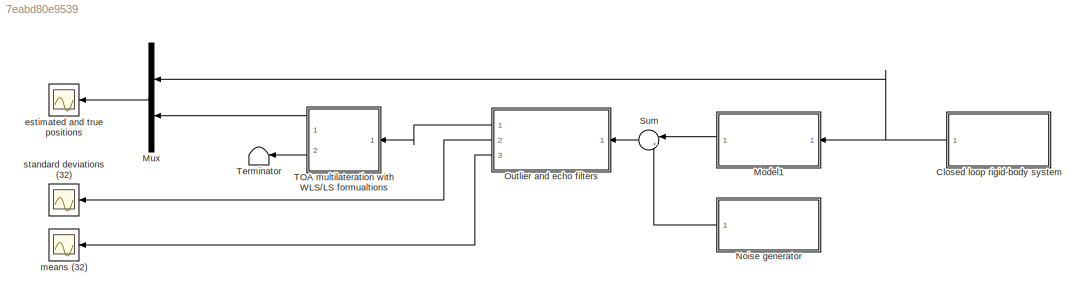
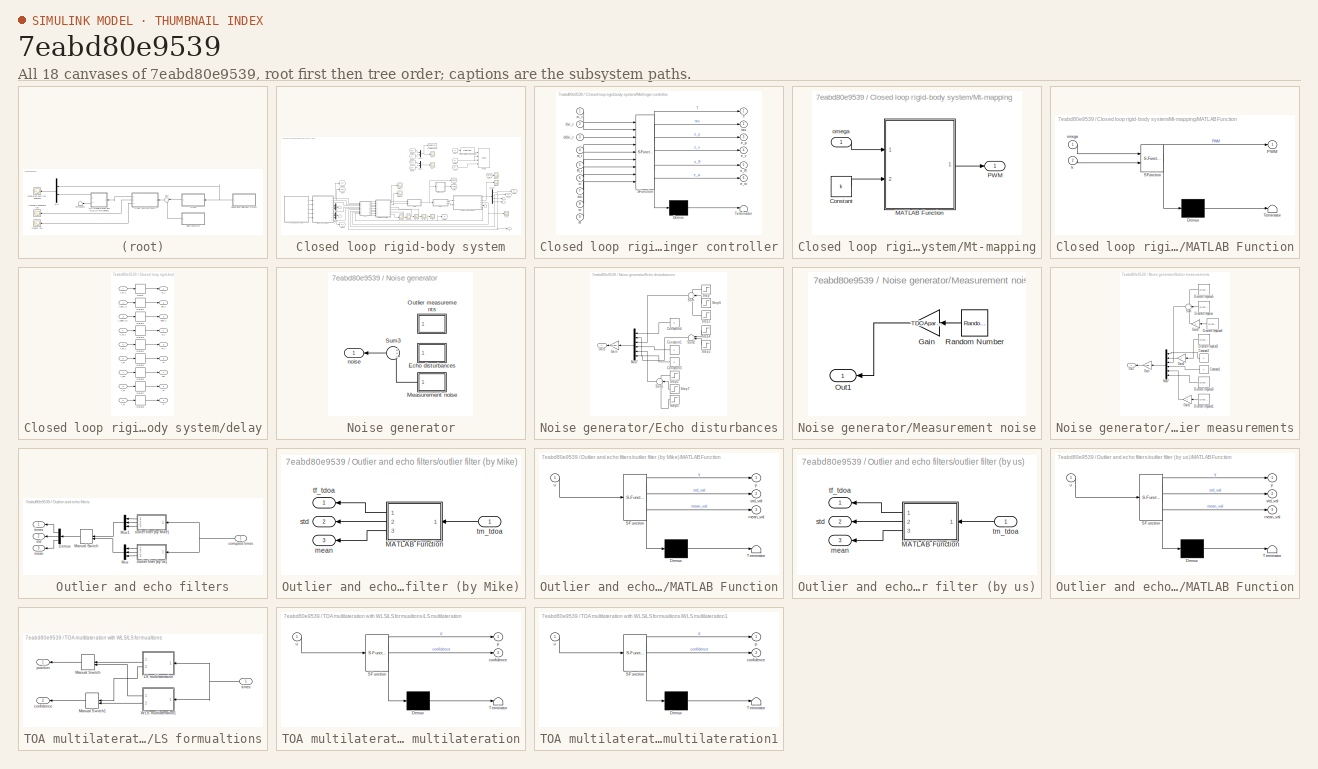
[diagram: thumbnail index - all 18 canvases of the model, root first then tree order]
MODEL slx_7eabd80e9539
KIND model
CONFIG AbsTol = auto
CONFIG FixedStep = auto
CONFIG MaxStep = auto
CONFIG MinStep = auto
CONFIG RelTol = 1e-3
CONFIG SampleTimeConstraint = Unconstrained
CONFIG Solver = VariableStepAuto
CONFIG SolverMode = Auto
CONFIG SolverName = VariableStepAuto
CONFIG StartTime = 0.0
CONFIG StopTime = 25
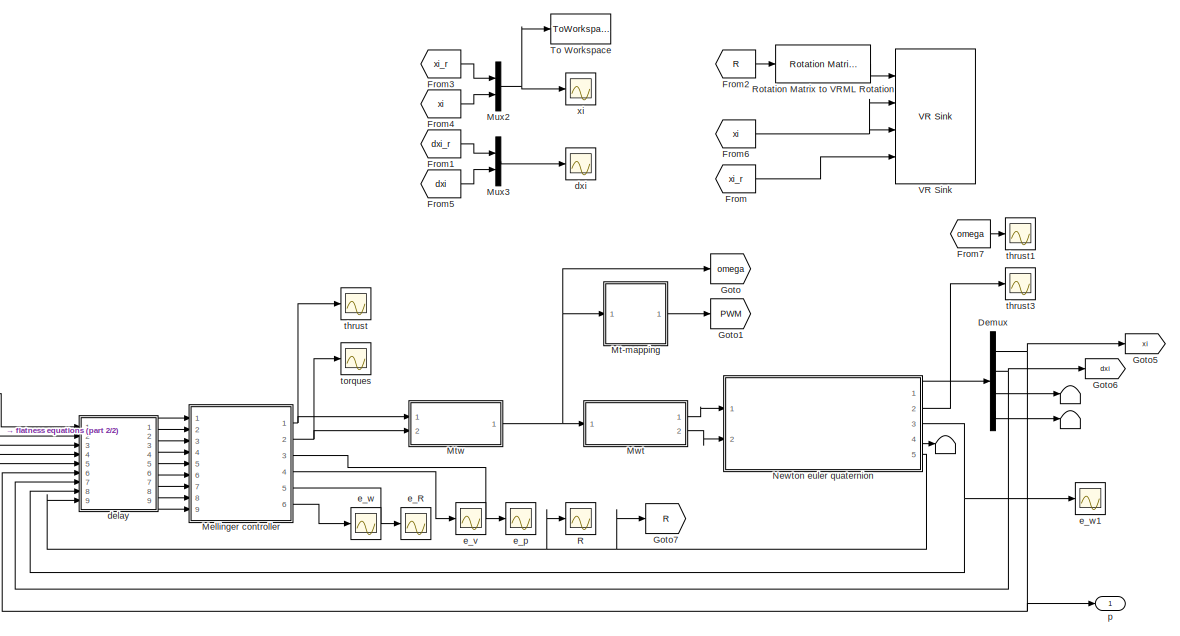
[diagram: Closed loop rigid-body system - part 1/2, center side, full height]
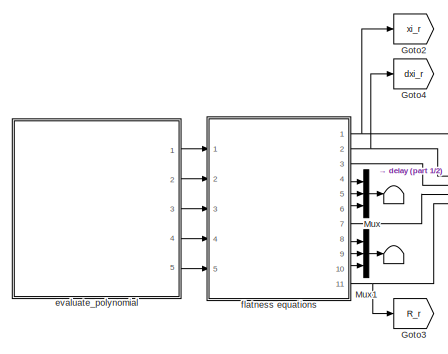
[diagram: Closed loop rigid-body system - part 2/2, bottom left region]
BLOCK [SubSystem] Closed loop rigid-body system
  Ports = [0, 1]
  RequestExecContextInheritance = off
  Variant = off
BLOCK [Terminator] Closed loop rigid-body system/ 
BLOCK [Terminator] Closed loop rigid-body system/  
BLOCK [Terminator] Closed loop rigid-body system/     
BLOCK [Terminator] Closed loop rigid-body system/      
BLOCK [Terminator] Closed loop rigid-body system/       
BLOCK [Demux] Closed loop rigid-body system/Demux
  DisplayOption = bar
  Outputs = [3,3,3,3]
  Ports = [1, 4]
BLOCK [From] Closed loop rigid-body system/From
  GotoTag = xi_r
BLOCK [From] Closed loop rigid-body system/From1
  GotoTag = dxi_r
BLOCK [From] Closed loop rigid-body system/From2
  GotoTag = R
BLOCK [From] Closed loop rigid-body system/From3
  GotoTag = xi_r
BLOCK [From] Closed loop rigid-body system/From4
  GotoTag = xi
BLOCK [From] Closed loop rigid-body system/From5
  GotoTag = dxi
BLOCK [From] Closed loop rigid-body system/From6
  GotoTag = xi
BLOCK [From] Closed loop rigid-body system/From7
  GotoTag = omega
BLOCK [Goto] Closed loop rigid-body system/Goto
  GotoTag = omega
BLOCK [Goto] Closed loop rigid-body system/Goto1
  GotoTag = PWM
BLOCK [Goto] Closed loop rigid-body system/Goto2
  GotoTag = xi_r
BLOCK [Goto] Closed loop rigid-body system/Goto3
  GotoTag = R_r
BLOCK [Goto] Closed loop rigid-body system/Goto4
  GotoTag = dxi_r
BLOCK [Goto] Closed loop rigid-body system/Goto5
  GotoTag = xi
BLOCK [Goto] Closed loop rigid-body system/Goto6
  GotoTag = dxi
BLOCK [Goto] Closed loop rigid-body system/Goto7
  GotoTag = R
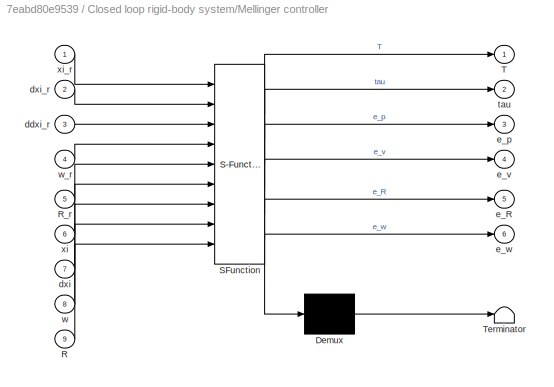
BLOCK [SubSystem] Closed loop rigid-body system/Mellinger controller
  ErrorFcn = Stateflow.Translate.translate
  PermitHierarchicalResolution = ExplicitOnly
  Ports = [9, 6]
  RequestExecContextInheritance = off
  SFBlockType = MATLAB Function
  SystemSampleTime = inner_h
  TreatAsAtomicUnit = on
  Variant = off
BLOCK [Demux] Closed loop rigid-body system/Mellinger controller/ Demux 
  Outputs = 1
  Ports = [1, 1]
BLOCK [S-Function] Closed loop rigid-body system/Mellinger controller/ SFunction 
  EnableBusSupport = on
  FunctionName = sf_sfun
  PortCounts = [9 7]
  Ports = [9, 7]
  SFunctionDeploymentMode = off
  Tag = Stateflow S-Function example_multilateration 2
BLOCK [Terminator] Closed loop rigid-body system/Mellinger controller/ Terminator 
BLOCK [Inport] Closed loop rigid-body system/Mellinger controller/R
  IconDisplay = Port number
  Port = 9
BLOCK [Inport] Closed loop rigid-body system/Mellinger controller/R_r
  IconDisplay = Port number
  Port = 5
BLOCK [Outport] Closed loop rigid-body system/Mellinger controller/T
  IconDisplay = Port number
BLOCK [Inport] Closed loop rigid-body system/Mellinger controller/ddxi_r
  IconDisplay = Port number
  Port = 3
BLOCK [Inport] Closed loop rigid-body system/Mellinger controller/dxi
  IconDisplay = Port number
  Port = 7
BLOCK [Inport] Closed loop rigid-body system/Mellinger controller/dxi_r
  IconDisplay = Port number
  Port = 2
BLOCK [Outport] Closed loop rigid-body system/Mellinger controller/e_R
  IconDisplay = Port number
  Port = 5
BLOCK [Outport] Closed loop rigid-body system/Mellinger controller/e_p
  IconDisplay = Port number
  Port = 3
BLOCK [Outport] Closed loop rigid-body system/Mellinger controller/e_v
  IconDisplay = Port number
  Port = 4
BLOCK [Outport] Closed loop rigid-body system/Mellinger controller/e_w
  IconDisplay = Port number
  Port = 6
BLOCK [Outport] Closed loop rigid-body system/Mellinger controller/tau
  IconDisplay = Port number
  Port = 2
BLOCK [Inport] Closed loop rigid-body system/Mellinger controller/w
  IconDisplay = Port number
  Port = 8
BLOCK [Inport] Closed loop rigid-body system/Mellinger controller/w_r
  IconDisplay = Port number
  Port = 4
BLOCK [Inport] Closed loop rigid-body system/Mellinger controller/xi
  IconDisplay = Port number
  Port = 6
BLOCK [Inport] Closed loop rigid-body system/Mellinger controller/xi_r
  IconDisplay = Port number
BLOCK [SubSystem] Closed loop rigid-body system/Mt-mapping
  Ports = [1, 1]
  RequestExecContextInheritance = off
  Variant = off
BLOCK [Constant] Closed loop rigid-body system/Mt-mapping/Constant
  Value = k
BLOCK [SubSystem] Closed loop rigid-body system/Mt-mapping/MATLAB Function
  ErrorFcn = Stateflow.Translate.translate
  PermitHierarchicalResolution = ExplicitOnly
  Ports = [2, 1]
  RequestExecContextInheritance = off
  SFBlockType = MATLAB Function
  TreatAsAtomicUnit = on
  Variant = off
BLOCK [Demux] Closed loop rigid-body system/Mt-mapping/MATLAB Function/ Demux 
  Outputs = 1
  Ports = [1, 1]
BLOCK [S-Function] Closed loop rigid-body system/Mt-mapping/MATLAB Function/ SFunction 
  EnableBusSupport = on
  FunctionName = sf_sfun
  PortCounts = [2 2]
  Ports = [2, 2]
  SFunctionDeploymentMode = off
  Tag = Stateflow S-Function example_multilateration 3
BLOCK [Terminator] Closed loop rigid-body system/Mt-mapping/MATLAB Function/ Terminator 
BLOCK [Outport] Closed loop rigid-body system/Mt-mapping/MATLAB Function/PWM
  IconDisplay = Port number
BLOCK [Inport] Closed loop rigid-body system/Mt-mapping/MATLAB Function/k
  IconDisplay = Port number
  Port = 2
BLOCK [Inport] Closed loop rigid-body system/Mt-mapping/MATLAB Function/omega
  IconDisplay = Port number
BLOCK [Outport] Closed loop rigid-body system/Mt-mapping/PWM
  IconDisplay = Port number
BLOCK [Inport] Closed loop rigid-body system/Mt-mapping/omega
  IconDisplay = Port number
BLOCK [ModelReference] Closed loop rigid-body system/Mtw
  ModelNameDialog = thrust2omega.mdl
  ModelReferenceVersion = 1.3
  Ports = [2, 1]
  Variant = off
BLOCK [Mux] Closed loop rigid-body system/Mux
  DisplayOption = bar
  Inputs = 3
  Ports = [3, 1]
BLOCK [Mux] Closed loop rigid-body system/Mux1
  DisplayOption = bar
  Inputs = 3
  Ports = [3, 1]
BLOCK [Mux] Closed loop rigid-body system/Mux2
  DisplayOption = bar
  Inputs = 2
  Ports = [2, 1]
BLOCK [Mux] Closed loop rigid-body system/Mux3
  DisplayOption = bar
  Inputs = 2
  Ports = [2, 1]
BLOCK [ModelReference] Closed loop rigid-body system/Mwt
  ModelNameDialog = omega2thrust.mdl
  ModelReferenceVersion = 1.3
  Ports = [1, 2]
  Variant = off
BLOCK [ModelReference] Closed loop rigid-body system/Newton euler quaternion
  ModelNameDialog = quadcopter_model_c_NewtonEuler.mdl
  ModelReferenceVersion = 1.325
  Ports = [2, 5]
  Variant = off
BLOCK [Scope] Closed loop rigid-body system/R
  Ports = [1]
  ScopeSpecificationString = Simulink.scopes.TimeScopeBlockCfg('CurrentConfiguration', extmgr.ConfigurationSet(extmgr.Configuration('Core','General UI',true),extmgr.Configuration('Core','Source UI',true),extmgr.Configuration('Sources','WiredSimulink',true,'DataLoggingVariableName','ScopeData7'),extmgr.Configuration('Visuals','Time Domain',true,'SerializedDisplays',{struct('MinYLimReal','-1.24996','MaxYLimReal','1.25','YLabelR...<+1684ch>
BLOCK [Reference] Closed loop rigid-body system/Rotation Matrix to VRML Rotation  REF=vrlib/Utilities/Rotation Matrix
to VRML Rotation
  Ports = [1, 1]
  SourceBlock = vrlib/Utilities/Rotation Matrix\nto VRML Rotation
  SourceType = Rotation Matrix to VRML Rotation
BLOCK [ToWorkspace] Closed loop rigid-body system/To Workspace
  FixptAsFi = on
  MaxDataPoints = inf
  Ports = [1]
  SampleTime = -1
  Save2DSignal = 3-D array (concatenate along third dimension)
  SaveFormat = Timeseries
  VariableName = simout
BLOCK [Reference] Closed loop rigid-body system/VR Sink  REF=vrlib/VR Sink
  InstantiateOnLoad = on
  Ports = [4]
  SourceBlock = vrlib/VR Sink
  SourceType = Virtual Reality Sink
BLOCK [SubSystem] Closed loop rigid-body system/delay
  Ports = [9, 9]
  RequestExecContextInheritance = off
  Variant = off
BLOCK [Delay] Closed loop rigid-body system/delay/Delay
  DelayLength = 1
  InitialCondition = 0
  InputPortMap = u0
  Ports = [1, 1]
  SampleTime = inner_h
BLOCK [Delay] Closed loop rigid-body system/delay/Delay1
  DelayLength = 1
  InitialCondition = 0
  InputPortMap = u0
  Ports = [1, 1]
  SampleTime = inner_h
BLOCK [Delay] Closed loop rigid-body system/delay/Delay2
  DelayLength = 1
  InitialCondition = 0
  InputPortMap = u0
  Ports = [1, 1]
  SampleTime = inner_h
BLOCK [Delay] Closed loop rigid-body system/delay/Delay3
  DelayLength = 1
  InitialCondition = 0
  InputPortMap = u0
  Ports = [1, 1]
  SampleTime = inner_h
BLOCK [Delay] Closed loop rigid-body system/delay/Delay4
  DelayLength = 1
  InitialCondition = 0
  InputPortMap = u0
  Ports = [1, 1]
  SampleTime = inner_h
BLOCK [Delay] Closed loop rigid-body system/delay/Delay5
  DelayLength = 1
  InitialCondition = 0
  InputPortMap = u0
  Ports = [1, 1]
  SampleTime = inner_h
BLOCK [Delay] Closed loop rigid-body system/delay/Delay6
  DelayLength = 1
  InitialCondition = 0
  InputPortMap = u0
  Ports = [1, 1]
  SampleTime = inner_h
BLOCK [Delay] Closed loop rigid-body system/delay/Delay7
  DelayLength = 1
  InitialCondition = 0
  InputPortMap = u0
  Ports = [1, 1]
  SampleTime = inner_h
BLOCK [Delay] Closed loop rigid-body system/delay/Delay8
  DelayLength = 1
  InitialCondition = 0
  InputPortMap = u0
  Ports = [1, 1]
  SampleTime = inner_h
BLOCK [Outport] Closed loop rigid-body system/delay/R
  IconDisplay = Port number
  Port = 9
BLOCK [Outport] Closed loop rigid-body system/delay/R_r
  IconDisplay = Port number
  Port = 5
BLOCK [Outport] Closed loop rigid-body system/delay/ddxi_r
  IconDisplay = Port number
  Port = 3
BLOCK [Outport] Closed loop rigid-body system/delay/dxi
  IconDisplay = Port number
  Port = 7
BLOCK [Outport] Closed loop rigid-body system/delay/dxi_r
  IconDisplay = Port number
  Port = 2
BLOCK [Inport] Closed loop rigid-body system/delay/i_R
  IconDisplay = Port number
  Port = 9
BLOCK [Inport] Closed loop rigid-body system/delay/i_R_r
  IconDisplay = Port number
  Port = 5
BLOCK [Inport] Closed loop rigid-body system/delay/i_ddxi_r2
  IconDisplay = Port number
  Port = 3
BLOCK [Inport] Closed loop rigid-body system/delay/i_dxi
  IconDisplay = Port number
  Port = 7
BLOCK [Inport] Closed loop rigid-body system/delay/i_dxi_r1
  IconDisplay = Port number
  Port = 2
BLOCK [Inport] Closed loop rigid-body system/delay/i_w
  IconDisplay = Port number
  Port = 8
BLOCK [Inport] Closed loop rigid-body system/delay/i_w_r
  IconDisplay = Port number
  Port = 4
BLOCK [Inport] Closed loop rigid-body system/delay/i_xi
  IconDisplay = Port number
  Port = 6
BLOCK [Inport] Closed loop rigid-body system/delay/i_xi_r
  IconDisplay = Port number
BLOCK [Outport] Closed loop rigid-body system/delay/w
  IconDisplay = Port number
  Port = 8
BLOCK [Outport] Closed loop rigid-body system/delay/w_r
  IconDisplay = Port number
  Port = 4
BLOCK [Outport] Closed loop rigid-body system/delay/xi
  IconDisplay = Port number
  Port = 6
BLOCK [Outport] Closed loop rigid-body system/delay/xi_r
  IconDisplay = Port number
BLOCK [Scope] Closed loop rigid-body system/dxi
  Ports = [1]
  ScopeSpecificationString = Simulink.scopes.TimeScopeBlockCfg('CurrentConfiguration', extmgr.ConfigurationSet(extmgr.Configuration('Core','General UI',true),extmgr.Configuration('Core','Source UI',true),extmgr.Configuration('Sources','WiredSimulink',true,'DataLoggingVariableName','ScopeData2'),extmgr.Configuration('Visuals','Time Domain',true,'SerializedDisplays',{struct('MinYLimReal','-0.53915','MaxYLimReal','0.62993','YLab...<+1515ch>
BLOCK [Scope] Closed loop rigid-body system/e_R
  Ports = [1]
  ScopeSpecificationString = Simulink.scopes.TimeScopeBlockCfg('CurrentConfiguration', extmgr.ConfigurationSet(extmgr.Configuration('Core','General UI',true),extmgr.Configuration('Core','Source UI',true),extmgr.Configuration('Sources','WiredSimulink',true,'DataLoggingVariableName','ScopeData4'),extmgr.Configuration('Visuals','Time Domain',true,'SerializedDisplays',{struct('MinYLimReal','-0.00077','MaxYLimReal','0.00078','YLab...<+1489ch>
BLOCK [Scope] Closed loop rigid-body system/e_p
  Ports = [1]
  ScopeSpecificationString = Simulink.scopes.TimeScopeBlockCfg('CurrentConfiguration', extmgr.ConfigurationSet(extmgr.Configuration('Core','General UI',true),extmgr.Configuration('Core','Source UI',true),extmgr.Configuration('Sources','WiredSimulink',true,'DataLoggingVariableName','ScopeData6'),extmgr.Configuration('Visuals','Time Domain',true,'SerializedDisplays',{struct('MinYLimReal','-0.00089','MaxYLimReal','0.00252','YLab...<+1518ch>
BLOCK [Scope] Closed loop rigid-body system/e_v
  Ports = [1]
  ScopeSpecificationString = Simulink.scopes.TimeScopeBlockCfg('CurrentConfiguration', extmgr.ConfigurationSet(extmgr.Configuration('Core','General UI',true),extmgr.Configuration('Core','Source UI',true),extmgr.Configuration('Sources','WiredSimulink',true,'DataLoggingVariableName','ScopeData5'),extmgr.Configuration('Visuals','Time Domain',true,'SerializedDisplays',{struct('MinYLimReal','-0.01054','MaxYLimReal','0.02297','YLab...<+1489ch>
BLOCK [Scope] Closed loop rigid-body system/e_w
  Ports = [1]
  ScopeSpecificationString = Simulink.scopes.TimeScopeBlockCfg('CurrentConfiguration', extmgr.ConfigurationSet(extmgr.Configuration('Core','General UI',true),extmgr.Configuration('Core','Source UI',true),extmgr.Configuration('Sources','WiredSimulink',true,'DataLoggingVariableName','ScopeData3'),extmgr.Configuration('Visuals','Time Domain',true,'SerializedDisplays',{struct('MinYLimReal','-0.21981','MaxYLimReal','0.21921','YLab...<+1462ch>
BLOCK [Scope] Closed loop rigid-body system/e_w1
  Ports = [1]
  ScopeSpecificationString = Simulink.scopes.TimeScopeBlockCfg('CurrentConfiguration', extmgr.ConfigurationSet(extmgr.Configuration('Core','General UI',true),extmgr.Configuration('Core','Source UI',true),extmgr.Configuration('Sources','WiredSimulink',true,'DataLoggingVariableName','ScopeData2'),extmgr.Configuration('Visuals','Time Domain',true,'SerializedDisplays',{struct('MinYLimReal','-0.26068','MaxYLimReal','0.3742','YLabe...<+1461ch>
BLOCK [ModelReference] Closed loop rigid-body system/evaluate_polynomial
  ModelNameDialog = trajectory_evaluator.slx
  ModelReferenceVersion = 1.106
  Ports = [0, 5]
  Variant = off
BLOCK [ModelReference] Closed loop rigid-body system/flatness equations
  ModelNameDialog = flatnessGen.slx
  ModelReferenceVersion = 1.117
  Ports = [5, 11]
  Variant = off
BLOCK [Outport] Closed loop rigid-body system/p
  IconDisplay = Port number
BLOCK [Scope] Closed loop rigid-body system/thrust
  Ports = [1]
  ScopeSpecificationString = Simulink.scopes.TimeScopeBlockCfg('CurrentConfiguration', extmgr.ConfigurationSet(extmgr.Configuration('Core','General UI',true),extmgr.Configuration('Core','Source UI',true),extmgr.Configuration('Sources','WiredSimulink',true,'DataLoggingVariableName','ScopeData1'),extmgr.Configuration('Visuals','Time Domain',true,'SerializedDisplays',{struct('MinYLimReal','-0.03389','MaxYLimReal','0.30497','YLab...<+1427ch>
BLOCK [Scope] Closed loop rigid-body system/thrust1
  Ports = [1]
  ScopeSpecificationString = Simulink.scopes.TimeScopeBlockCfg('CurrentConfiguration', extmgr.ConfigurationSet(extmgr.Configuration('Core','General UI',true),extmgr.Configuration('Core','Source UI',true),extmgr.Configuration('Sources','WiredSimulink',true,'DataLoggingVariableName','ScopeData1'),extmgr.Configuration('Visuals','Time Domain',true,'SerializedDisplays',{struct('MinYLimReal','-237.15726','MaxYLimReal','2134.41535',...<+1452ch>
BLOCK [Scope] Closed loop rigid-body system/thrust3
  Ports = [1]
  ScopeSpecificationString = Simulink.scopes.TimeScopeBlockCfg('CurrentConfiguration', extmgr.ConfigurationSet(extmgr.Configuration('Core','General UI',true),extmgr.Configuration('Core','Source UI',true),extmgr.Configuration('Sources','WiredSimulink',true,'DataLoggingVariableName','ScopeData5'),extmgr.Configuration('Visuals','Time Domain',true,'SerializedDisplays',{struct('MinYLimReal','-0.16287','MaxYLimReal','1.12921','YLab...<+1551ch>
BLOCK [Scope] Closed loop rigid-body system/torques
  Ports = [1]
  ScopeSpecificationString = Simulink.scopes.TimeScopeBlockCfg('CurrentConfiguration', extmgr.ConfigurationSet(extmgr.Configuration('Core','General UI',true),extmgr.Configuration('Core','Source UI',true),extmgr.Configuration('Sources','WiredSimulink',true,'DataLoggingVariableName','ScopeData2'),extmgr.Configuration('Visuals','Time Domain',true,'SerializedDisplays',{struct('MinYLimReal','-0.00132','MaxYLimReal','0.00131','YLab...<+1489ch>
BLOCK [Scope] Closed loop rigid-body system/xi
  Ports = [1]
  ScopeSpecificationString = Simulink.scopes.TimeScopeBlockCfg('CurrentConfiguration', extmgr.ConfigurationSet(extmgr.Configuration('Core','General UI',true),extmgr.Configuration('Core','Source UI',true),extmgr.Configuration('Sources','WiredSimulink',true,'DataLoggingVariableName','ScopeData1'),extmgr.Configuration('Visuals','Time Domain',true,'SerializedDisplays',{struct('MinYLimReal','-1.25882','MaxYLimReal','1.25882','YLab...<+1542ch>
BLOCK [ModelReference] Model1
  ModelNameDialog = TDOA_generator.slx
  ModelReferenceVersion = 1.3
  Ports = [1, 1]
  Variant = off
BLOCK [Mux] Mux
  DisplayOption = bar
  Inputs = 2
  Ports = [2, 1]
BLOCK [SubSystem] Noise generator
  Ports = [0, 1]
  RequestExecContextInheritance = off
  Variant = off
BLOCK [SubSystem] Noise generator/Echo disturbances
  Ports = [0, 1]
  RequestExecContextInheritance = off
  Variant = off
BLOCK [Constant] Noise generator/Echo disturbances/Constant1
  Value = 0
BLOCK [Constant] Noise generator/Echo disturbances/Constant3
  Value = 0
BLOCK [Constant] Noise generator/Echo disturbances/Constant4
  Value = 0
BLOCK [Gain] Noise generator/Echo disturbances/Gain
  Gain = 1/3e8
  OutDataTypeStr = Inherit: Inherit via internal rule
  ParamDataTypeStr = Inherit: Inherit via internal rule
  SaturateOnIntegerOverflow = off
BLOCK [Mux] Noise generator/Echo disturbances/Mux7
  DisplayOption = bar
  Inputs = 6
  Ports = [6, 1]
BLOCK [Outport] Noise generator/Echo disturbances/Out1
  IconDisplay = Port number
BLOCK [Step] Noise generator/Echo disturbances/Step
  After = -0.3
  SampleTime = 0
  Time = 10
BLOCK [Step] Noise generator/Echo disturbances/Step1
  After = -0.4
  SampleTime = 0
  Time = 14
BLOCK [Step] Noise generator/Echo disturbances/Step2
  After = 0.4
  SampleTime = 0
  Time = 16
BLOCK [Step] Noise generator/Echo disturbances/Step3
  After = -1
  SampleTime = 0
  Time = 22
BLOCK [Step] Noise generator/Echo disturbances/Step4
  After = 0.3
  SampleTime = 0
  Time = 3
BLOCK [Step] Noise generator/Echo disturbances/Step5
  After = -0.3
  SampleTime = 0
  Time = 6
BLOCK [Step] Noise generator/Echo disturbances/Step6
  After = 0.7
  SampleTime = 0
  Time = 12
BLOCK [Step] Noise generator/Echo disturbances/Step7
  After = 0.6
  SampleTime = 0
  Time = 20
BLOCK [Sum] Noise generator/Echo disturbances/Sum
  IconShape = round
  InputSameDT = off
  Inputs = +++
  OutDataTypeStr = Inherit: Inherit via internal rule
  Ports = [3, 1]
  SaturateOnIntegerOverflow = off
BLOCK [Sum] Noise generator/Echo disturbances/Sum1
  IconShape = round
  InputSameDT = off
  Inputs = +++
  OutDataTypeStr = Inherit: Inherit via internal rule
  Ports = [3, 1]
  SaturateOnIntegerOverflow = off
BLOCK [Sum] Noise generator/Echo disturbances/Sum2
  IconShape = round
  InputSameDT = off
  Inputs = +|+
  OutDataTypeStr = Inherit: Inherit via internal rule
  Ports = [2, 1]
  SaturateOnIntegerOverflow = off
BLOCK [SubSystem] Noise generator/Measurement noise
  Ports = [0, 1]
  RequestExecContextInheritance = off
  Variant = off
BLOCK [Gain] Noise generator/Measurement noise/Gain
  Gain = TDOAparam.noiseStd
  OutDataTypeStr = Inherit: Inherit via internal rule
  ParamDataTypeStr = Inherit: Inherit via internal rule
  SaturateOnIntegerOverflow = off
BLOCK [Outport] Noise generator/Measurement noise/Out1
  IconDisplay = Port number
BLOCK [RandomNumber] Noise generator/Measurement noise/Random Number
  Mean = TDOAparam.noiseMean
  SampleTime = 1/60
  Variance = [1,1,1,1,1,1]
BLOCK [SubSystem] Noise generator/Outlier measurements
  Ports = [0, 1]
  RequestExecContextInheritance = off
  Variant = off
BLOCK [Constant] Noise generator/Outlier measurements/Constant1
  Value = 0
BLOCK [Constant] Noise generator/Outlier measurements/Constant2
  Value = 0
BLOCK [Reference] Noise generator/Outlier measurements/Discrete Impulse  REF=dspsrcs4/Discrete 
Impulse
  Ports = [0, 1]
  SourceBlock = dspsrcs4/Discrete \nImpulse
  SourceType = Discrete Impulse
BLOCK [Reference] Noise generator/Outlier measurements/Discrete Impulse1  REF=dspsrcs4/Discrete 
Impulse
  Ports = [0, 1]
  SourceBlock = dspsrcs4/Discrete \nImpulse
  SourceType = Discrete Impulse
BLOCK [Reference] Noise generator/Outlier measurements/Discrete Impulse2  REF=dspsrcs4/Discrete 
Impulse
  Ports = [0, 1]
  SourceBlock = dspsrcs4/Discrete \nImpulse
  SourceType = Discrete Impulse
BLOCK [Reference] Noise generator/Outlier measurements/Discrete Impulse3  REF=dspsrcs4/Discrete 
Impulse
  Ports = [0, 1]
  SourceBlock = dspsrcs4/Discrete \nImpulse
  SourceType = Discrete Impulse
BLOCK [Reference] Noise generator/Outlier measurements/Discrete Impulse4  REF=dspsrcs4/Discrete 
Impulse
  Ports = [0, 1]
  SourceBlock = dspsrcs4/Discrete \nImpulse
  SourceType = Discrete Impulse
BLOCK [Reference] Noise generator/Outlier measurements/Discrete Impulse5  REF=dspsrcs4/Discrete 
Impulse
  Ports = [0, 1]
  SourceBlock = dspsrcs4/Discrete \nImpulse
  SourceType = Discrete Impulse
BLOCK [Gain] Noise generator/Outlier measurements/Gain
  Gain = 1/3e8
  OutDataTypeStr = Inherit: Inherit via internal rule
  ParamDataTypeStr = Inherit: Inherit via internal rule
  SaturateOnIntegerOverflow = off
BLOCK [Gain] Noise generator/Outlier measurements/Gain1
  Gain = -1
  OutDataTypeStr = Inherit: Inherit via internal rule
  ParamDataTypeStr = Inherit: Inherit via internal rule
  SaturateOnIntegerOverflow = off
BLOCK [Gain] Noise generator/Outlier measurements/Gain2
  Gain = -1
  OutDataTypeStr = Inherit: Inherit via internal rule
  ParamDataTypeStr = Inherit: Inherit via internal rule
  SaturateOnIntegerOverflow = off
BLOCK [Gain] Noise generator/Outlier measurements/Gain3
  Gain = -1
  OutDataTypeStr = Inherit: Inherit via internal rule
  ParamDataTypeStr = Inherit: Inherit via internal rule
  SaturateOnIntegerOverflow = off
BLOCK [Mux] Noise generator/Outlier measurements/Mux7
  DisplayOption = bar
  Inputs = 6
  Ports = [6, 1]
BLOCK [Outport] Noise generator/Outlier measurements/Out2
  IconDisplay = Port number
BLOCK [Sum] Noise generator/Outlier measurements/Sum
  IconShape = round
  InputSameDT = off
  Inputs = +++
  OutDataTypeStr = Inherit: Inherit via internal rule
  Ports = [3, 1]
  SaturateOnIntegerOverflow = off
BLOCK [Sum] Noise generator/Sum3
  IconShape = round
  InputSameDT = off
  Inputs = +++
  OutDataTypeStr = Inherit: Inherit via internal rule
  Ports = [3, 1]
  SaturateOnIntegerOverflow = off
BLOCK [Outport] Noise generator/noise
  IconDisplay = Port number
BLOCK [SubSystem] Outlier and echo filters
  Ports = [1, 3]
  RequestExecContextInheritance = off
  Variant = off
BLOCK [Demux] Outlier and echo filters/Demux
  DisplayOption = bar
  Outputs = [6,6,6]
  Ports = [1, 3]
BLOCK [ManualSwitch] Outlier and echo filters/Manual Switch
  CurrentSetting = 0
BLOCK [Mux] Outlier and echo filters/Mux
  DisplayOption = bar
  Inputs = 3
  Ports = [3, 1]
BLOCK [Mux] Outlier and echo filters/Mux1
  DisplayOption = bar
  Inputs = 3
  Ports = [3, 1]
BLOCK [Inport] Outlier and echo filters/corrupted times
  IconDisplay = Port number
BLOCK [Outport] Outlier and echo filters/mean
  IconDisplay = Port number
  Port = 3
BLOCK [SubSystem] Outlier and echo filters/outlier filter (by Mike)
  Ports = [1, 3]
  RequestExecContextInheritance = off
  SystemSampleTime = 1/60
  TreatAsAtomicUnit = on
  Variant = off
BLOCK [SubSystem] Outlier and echo filters/outlier filter (by Mike)/MATLAB Function
  ErrorFcn = Stateflow.Translate.translate
  PermitHierarchicalResolution = ExplicitOnly
  Ports = [1, 3]
  RequestExecContextInheritance = off
  SFBlockType = MATLAB Function
  TreatAsAtomicUnit = on
  Variant = off
BLOCK [Demux] Outlier and echo filters/outlier filter (by Mike)/MATLAB Function/ Demux 
  Outputs = 1
  Ports = [1, 1]
BLOCK [S-Function] Outlier and echo filters/outlier filter (by Mike)/MATLAB Function/ SFunction 
  EnableBusSupport = on
  FunctionName = sf_sfun
  PortCounts = [1 4]
  Ports = [1, 4]
  SFunctionDeploymentMode = off
  Tag = Stateflow S-Function example_multilateration 1
BLOCK [Terminator] Outlier and echo filters/outlier filter (by Mike)/MATLAB Function/ Terminator 
BLOCK [Outport] Outlier and echo filters/outlier filter (by Mike)/MATLAB Function/mean_val
  IconDisplay = Port number
  Port = 3
BLOCK [Outport] Outlier and echo filters/outlier filter (by Mike)/MATLAB Function/std_val
  IconDisplay = Port number
  Port = 2
BLOCK [Inport] Outlier and echo filters/outlier filter (by Mike)/MATLAB Function/u
  IconDisplay = Port number
BLOCK [Outport] Outlier and echo filters/outlier filter (by Mike)/MATLAB Function/y
  IconDisplay = Port number
BLOCK [Outport] Outlier and echo filters/outlier filter (by Mike)/mean
  IconDisplay = Port number
  Port = 3
  PortDimensions = 6
BLOCK [Outport] Outlier and echo filters/outlier filter (by Mike)/std
  IconDisplay = Port number
  Port = 2
  PortDimensions = 6
BLOCK [Outport] Outlier and echo filters/outlier filter (by Mike)/tf_tdoa
  IconDisplay = Port number
  PortDimensions = 6
BLOCK [Inport] Outlier and echo filters/outlier filter (by Mike)/tm_tdoa
  IconDisplay = Port number
  PortDimensions = 6
BLOCK [SubSystem] Outlier and echo filters/outlier filter (by us)
  Ports = [1, 3]
  RequestExecContextInheritance = off
  SystemSampleTime = 1/60
  TreatAsAtomicUnit = on
  Variant = off
BLOCK [SubSystem] Outlier and echo filters/outlier filter (by us)/MATLAB Function
  ErrorFcn = Stateflow.Translate.translate
  PermitHierarchicalResolution = ExplicitOnly
  Ports = [1, 3]
  RequestExecContextInheritance = off
  SFBlockType = MATLAB Function
  TreatAsAtomicUnit = on
  Variant = off
BLOCK [Demux] Outlier and echo filters/outlier filter (by us)/MATLAB Function/ Demux 
  Outputs = 1
  Ports = [1, 1]
BLOCK [S-Function] Outlier and echo filters/outlier filter (by us)/MATLAB Function/ SFunction 
  EnableBusSupport = on
  FunctionName = sf_sfun
  PortCounts = [1 4]
  Ports = [1, 4]
  SFunctionDeploymentMode = off
  Tag = Stateflow S-Function example_multilateration 4
BLOCK [Terminator] Outlier and echo filters/outlier filter (by us)/MATLAB Function/ Terminator 
BLOCK [Outport] Outlier and echo filters/outlier filter (by us)/MATLAB Function/mean_val
  IconDisplay = Port number
  Port = 3
BLOCK [Outport] Outlier and echo filters/outlier filter (by us)/MATLAB Function/std_val
  IconDisplay = Port number
  Port = 2
BLOCK [Inport] Outlier and echo filters/outlier filter (by us)/MATLAB Function/u
  IconDisplay = Port number
BLOCK [Outport] Outlier and echo filters/outlier filter (by us)/MATLAB Function/y
  IconDisplay = Port number
BLOCK [Outport] Outlier and echo filters/outlier filter (by us)/mean
  IconDisplay = Port number
  Port = 3
  PortDimensions = 6
BLOCK [Outport] Outlier and echo filters/outlier filter (by us)/std
  IconDisplay = Port number
  Port = 2
  PortDimensions = 6
BLOCK [Outport] Outlier and echo filters/outlier filter (by us)/tf_tdoa
  IconDisplay = Port number
  PortDimensions = 6
BLOCK [Inport] Outlier and echo filters/outlier filter (by us)/tm_tdoa
  IconDisplay = Port number
  PortDimensions = 6
BLOCK [Outport] Outlier and echo filters/std
  IconDisplay = Port number
  Port = 2
BLOCK [Outport] Outlier and echo filters/times
  IconDisplay = Port number
BLOCK [Sum] Sum
  IconShape = round
  InputSameDT = off
  Inputs = |++
  OutDataTypeStr = Inherit: Inherit via internal rule
  Ports = [2, 1]
  SaturateOnIntegerOverflow = off
BLOCK [SubSystem] TOA multilateration with WLS//LS formualtions
  Ports = [1, 2]
  RequestExecContextInheritance = off
  Variant = off
BLOCK [SubSystem] TOA multilateration with WLS//LS formualtions/LS multilateration
  ErrorFcn = Stateflow.Translate.translate
  PermitHierarchicalResolution = ExplicitOnly
  Ports = [1, 2]
  RequestExecContextInheritance = off
  SFBlockType = MATLAB Function
  TreatAsAtomicUnit = on
  Variant = off
BLOCK [Demux] TOA multilateration with WLS//LS formualtions/LS multilateration/ Demux 
  Outputs = 1
  Ports = [1, 1]
BLOCK [S-Function] TOA multilateration with WLS//LS formualtions/LS multilateration/ SFunction 
  EnableBusSupport = on
  FunctionName = sf_sfun
  PortCounts = [1 3]
  Ports = [1, 3]
  SFunctionDeploymentMode = off
  Tag = Stateflow S-Function example_multilateration 5
BLOCK [Terminator] TOA multilateration with WLS//LS formualtions/LS multilateration/ Terminator 
BLOCK [Outport] TOA multilateration with WLS//LS formualtions/LS multilateration/confidence
  IconDisplay = Port number
  Port = 2
BLOCK [Outport] TOA multilateration with WLS//LS formualtions/LS multilateration/p
  IconDisplay = Port number
BLOCK [Inport] TOA multilateration with WLS//LS formualtions/LS multilateration/u
  IconDisplay = Port number
BLOCK [ManualSwitch] TOA multilateration with WLS//LS formualtions/Manual Switch
BLOCK [ManualSwitch] TOA multilateration with WLS//LS formualtions/Manual Switch1
BLOCK [SubSystem] TOA multilateration with WLS//LS formualtions/WLS multilateration1
  ErrorFcn = Stateflow.Translate.translate
  PermitHierarchicalResolution = ExplicitOnly
  Ports = [1, 2]
  RequestExecContextInheritance = off
  SFBlockType = MATLAB Function
  TreatAsAtomicUnit = on
  Variant = off
BLOCK [Demux] TOA multilateration with WLS//LS formualtions/WLS multilateration1/ Demux 
  Outputs = 1
  Ports = [1, 1]
BLOCK [S-Function] TOA multilateration with WLS//LS formualtions/WLS multilateration1/ SFunction 
  EnableBusSupport = on
  FunctionName = sf_sfun
  PortCounts = [1 3]
  Ports = [1, 3]
  SFunctionDeploymentMode = off
  Tag = Stateflow S-Function example_multilateration 6
BLOCK [Terminator] TOA multilateration with WLS//LS formualtions/WLS multilateration1/ Terminator 
BLOCK [Outport] TOA multilateration with WLS//LS formualtions/WLS multilateration1/confidence
  IconDisplay = Port number
  Port = 2
BLOCK [Outport] TOA multilateration with WLS//LS formualtions/WLS multilateration1/p
  IconDisplay = Port number
BLOCK [Inport] TOA multilateration with WLS//LS formualtions/WLS multilateration1/u
  IconDisplay = Port number
BLOCK [Outport] TOA multilateration with WLS//LS formualtions/confidence
  IconDisplay = Port number
  Port = 2
  PortDimensions = 3
BLOCK [Outport] TOA multilateration with WLS//LS formualtions/position
  IconDisplay = Port number
  PortDimensions = 3
BLOCK [Inport] TOA multilateration with WLS//LS formualtions/times
  IconDisplay = Port number
  PortDimensions = 6
BLOCK [Terminator] Terminator
BLOCK [Scope] estimated and true positions
  Ports = [1]
  ScopeSpecificationString = Simulink.scopes.TimeScopeBlockCfg('CurrentConfiguration', extmgr.ConfigurationSet(extmgr.Configuration('Core','General UI',true),extmgr.Configuration('Core','Source UI',true),extmgr.Configuration('Sources','WiredSimulink',true,'DataLoggingVariableName','ScopeData3'),extmgr.Configuration('Visuals','Time Domain',true,'SerializedDisplays',{struct('MinYLimReal','-1.09856','MaxYLimReal','3.4554','YLabe...<+1635ch>
BLOCK [Scope] means (32)
  Ports = [1]
  ScopeSpecificationString = Simulink.scopes.TimeScopeBlockCfg('CurrentConfiguration', extmgr.ConfigurationSet(extmgr.Configuration('Core','General UI',true),extmgr.Configuration('Core','Source UI',true),extmgr.Configuration('Sources','WiredSimulink',true,'DataLoggingVariableName','ScopeData5'),extmgr.Configuration('Visuals','Time Domain',true,'SerializedDisplays',{struct('MinYLimReal','-0.000000003','MaxYLimReal','0.00000002...<+1649ch>
BLOCK [Scope] standard deviations (32)
  Ports = [1]
  ScopeSpecificationString = Simulink.scopes.TimeScopeBlockCfg('CurrentConfiguration', extmgr.ConfigurationSet(extmgr.Configuration('Core','General UI',true),extmgr.Configuration('Core','Source UI',true),extmgr.Configuration('Sources','WiredSimulink',true,'DataLoggingVariableName','ScopeData4'),extmgr.Configuration('Visuals','Time Domain',true,'SerializedDisplays',{struct('MinYLimReal','-0.000000001','MaxYLimReal','0.00000001...<+1649ch>
NET Closed loop rigid-body system/Demux:1 -> Closed loop rigid-body system/Goto5:1, Closed loop rigid-body system/delay:6, Closed loop rigid-body system/p:1
NET Closed loop rigid-body system/Demux:2 -> Closed loop rigid-body system/Goto6:1, Closed loop rigid-body system/delay:7
LINE Closed loop rigid-body system/Demux:3 -> Closed loop rigid-body system/      :1
LINE Closed loop rigid-body system/Demux:4 -> Closed loop rigid-body system/       :1
LINE Closed loop rigid-body system/From1:1 -> Closed loop rigid-body system/Mux3:1
LINE Closed loop rigid-body system/From2:1 -> Closed loop rigid-body system/Rotation Matrix to VRML Rotation:1
LINE Closed loop rigid-body system/From3:1 -> Closed loop rigid-body system/Mux2:1
LINE Closed loop rigid-body system/From4:1 -> Closed loop rigid-body system/Mux2:2
LINE Closed loop rigid-body system/From5:1 -> Closed loop rigid-body system/Mux3:2
NET Closed loop rigid-body system/From6:1 -> Closed loop rigid-body system/VR Sink:2, Closed loop rigid-body system/VR Sink:3
LINE Closed loop rigid-body system/From7:1 -> Closed loop rigid-body system/thrust1:1
LINE Closed loop rigid-body system/From:1 -> Closed loop rigid-body system/VR Sink:4
NET Closed loop rigid-body system/Mellinger controller:1 -> Closed loop rigid-body system/Mtw:1, Closed loop rigid-body system/thrust:1
NET Closed loop rigid-body system/Mellinger controller:2 -> Closed loop rigid-body system/Mtw:2, Closed loop rigid-body system/torques:1
LINE Closed loop rigid-body system/Mellinger controller:3 -> Closed loop rigid-body system/e_p:1
LINE Closed loop rigid-body system/Mellinger controller:4 -> Closed loop rigid-body system/e_v:1
LINE Closed loop rigid-body system/Mellinger controller:5 -> Closed loop rigid-body system/e_R:1
LINE Closed loop rigid-body system/Mellinger controller:6 -> Closed loop rigid-body system/e_w:1
LINE Closed loop rigid-body system/Mt-mapping/Constant:1 -> Closed loop rigid-body system/Mt-mapping/MATLAB Function:2
LINE Closed loop rigid-body system/Mt-mapping/MATLAB Function:1 -> Closed loop rigid-body system/Mt-mapping/PWM:1
LINE Closed loop rigid-body system/Mt-mapping/omega:1 -> Closed loop rigid-body system/Mt-mapping/MATLAB Function:1
LINE Closed loop rigid-body system/Mt-mapping:1 -> Closed loop rigid-body system/Goto1:1
NET Closed loop rigid-body system/Mtw:1 -> Closed loop rigid-body system/Goto:1, Closed loop rigid-body system/Mt-mapping:1, Closed loop rigid-body system/Mwt:1
LINE Closed loop rigid-body system/Mux1:1 -> Closed loop rigid-body system/  :1
NET Closed loop rigid-body system/Mux2:1 -> Closed loop rigid-body system/To Workspace:1, Closed loop rigid-body system/xi:1
LINE Closed loop rigid-body system/Mux3:1 -> Closed loop rigid-body system/dxi:1
LINE Closed loop rigid-body system/Mux:1 -> Closed loop rigid-body system/ :1
LINE Closed loop rigid-body system/Mwt:1 -> Closed loop rigid-body system/Newton euler quaternion:1
LINE Closed loop rigid-body system/Mwt:2 -> Closed loop rigid-body system/Newton euler quaternion:2
LINE Closed loop rigid-body system/Newton euler quaternion:1 -> Closed loop rigid-body system/Demux:1
LINE Closed loop rigid-body system/Newton euler quaternion:2 -> Closed loop rigid-body system/thrust3:1
NET Closed loop rigid-body system/Newton euler quaternion:3 -> Closed loop rigid-body system/delay:8, Closed loop rigid-body system/e_w1:1
LINE Closed loop rigid-body system/Newton euler quaternion:4 -> Closed loop rigid-body system/     :1
NET Closed loop rigid-body system/Newton euler quaternion:5 -> Closed loop rigid-body system/Goto7:1, Closed loop rigid-body system/R:1, Closed loop rigid-body system/delay:9
LINE Closed loop rigid-body system/Rotation Matrix to VRML Rotation:1 -> Closed loop rigid-body system/VR Sink:1
LINE Closed loop rigid-body system/delay/Delay1:1 -> Closed loop rigid-body system/delay/dxi_r:1
LINE Closed loop rigid-body system/delay/Delay2:1 -> Closed loop rigid-body system/delay/ddxi_r:1
LINE Closed loop rigid-body system/delay/Delay3:1 -> Closed loop rigid-body system/delay/w_r:1
LINE Closed loop rigid-body system/delay/Delay4:1 -> Closed loop rigid-body system/delay/R_r:1
LINE Closed loop rigid-body system/delay/Delay5:1 -> Closed loop rigid-body system/delay/xi:1
LINE Closed loop rigid-body system/delay/Delay6:1 -> Closed loop rigid-body system/delay/dxi:1
LINE Closed loop rigid-body system/delay/Delay7:1 -> Closed loop rigid-body system/delay/w:1
LINE Closed loop rigid-body system/delay/Delay8:1 -> Closed loop rigid-body system/delay/R:1
LINE Closed loop rigid-body system/delay/Delay:1 -> Closed loop rigid-body system/delay/xi_r:1
LINE Closed loop rigid-body system/delay/i_R:1 -> Closed loop rigid-body system/delay/Delay8:1
LINE Closed loop rigid-body system/delay/i_R_r:1 -> Closed loop rigid-body system/delay/Delay4:1
LINE Closed loop rigid-body system/delay/i_ddxi_r2:1 -> Closed loop rigid-body system/delay/Delay2:1
LINE Closed loop rigid-body system/delay/i_dxi:1 -> Closed loop rigid-body system/delay/Delay6:1
LINE Closed loop rigid-body system/delay/i_dxi_r1:1 -> Closed loop rigid-body system/delay/Delay1:1
LINE Closed loop rigid-body system/delay/i_w:1 -> Closed loop rigid-body system/delay/Delay7:1
LINE Closed loop rigid-body system/delay/i_w_r:1 -> Closed loop rigid-body system/delay/Delay3:1
LINE Closed loop rigid-body system/delay/i_xi:1 -> Closed loop rigid-body system/delay/Delay5:1
LINE Closed loop rigid-body system/delay/i_xi_r:1 -> Closed loop rigid-body system/delay/Delay:1
LINE Closed loop rigid-body system/delay:1 -> Closed loop rigid-body system/Mellinger controller:1
LINE Closed loop rigid-body system/delay:2 -> Closed loop rigid-body system/Mellinger controller:2
LINE Closed loop rigid-body system/delay:3 -> Closed loop rigid-body system/Mellinger controller:3
LINE Closed loop rigid-body system/delay:4 -> Closed loop rigid-body system/Mellinger controller:4
LINE Closed loop rigid-body system/delay:5 -> Closed loop rigid-body system/Mellinger controller:5
LINE Closed loop rigid-body system/delay:6 -> Closed loop rigid-body system/Mellinger controller:6
LINE Closed loop rigid-body system/delay:7 -> Closed loop rigid-body system/Mellinger controller:7
LINE Closed loop rigid-body system/delay:8 -> Closed loop rigid-body system/Mellinger controller:8
LINE Closed loop rigid-body system/delay:9 -> Closed loop rigid-body system/Mellinger controller:9
LINE Closed loop rigid-body system/evaluate_polynomial:1 -> Closed loop rigid-body system/flatness equations:1
LINE Closed loop rigid-body system/evaluate_polynomial:2 -> Closed loop rigid-body system/flatness equations:2
LINE Closed loop rigid-body system/evaluate_polynomial:3 -> Closed loop rigid-body system/flatness equations:3
LINE Closed loop rigid-body system/evaluate_polynomial:4 -> Closed loop rigid-body system/flatness equations:4
LINE Closed loop rigid-body system/evaluate_polynomial:5 -> Closed loop rigid-body system/flatness equations:5
NET Closed loop rigid-body system/flatness equations:1 -> Closed loop rigid-body system/Goto2:1, Closed loop rigid-body system/delay:1
LINE Closed loop rigid-body system/flatness equations:10 -> Closed loop rigid-body system/Mux1:3
NET Closed loop rigid-body system/flatness equations:11 -> Closed loop rigid-body system/Goto3:1, Closed loop rigid-body system/delay:5
NET Closed loop rigid-body system/flatness equations:2 -> Closed loop rigid-body system/Goto4:1, Closed loop rigid-body system/delay:2
LINE Closed loop rigid-body system/flatness equations:3 -> Closed loop rigid-body system/delay:3
LINE Closed loop rigid-body system/flatness equations:4 -> Closed loop rigid-body system/Mux:1
LINE Closed loop rigid-body system/flatness equations:5 -> Closed loop rigid-body system/Mux:2
LINE Closed loop rigid-body system/flatness equations:6 -> Closed loop rigid-body system/Mux:3
LINE Closed loop rigid-body system/flatness equations:7 -> Closed loop rigid-body system/delay:4
LINE Closed loop rigid-body system/flatness equations:8 -> Closed loop rigid-body system/Mux1:1
LINE Closed loop rigid-body system/flatness equations:9 -> Closed loop rigid-body system/Mux1:2
NET Closed loop rigid-body system:1 -> Model1:1, Mux:1
LINE Model1:1 -> Sum:1
LINE Mux:1 -> estimated and true positions:1
LINE Noise generator/Echo disturbances/Constant1:1 -> Noise generator/Echo disturbances/Mux7:2
LINE Noise generator/Echo disturbances/Constant3:1 -> Noise generator/Echo disturbances/Mux7:4
LINE Noise generator/Echo disturbances/Constant4:1 -> Noise generator/Echo disturbances/Mux7:1
LINE Noise generator/Echo disturbances/Gain:1 -> Noise generator/Echo disturbances/Out1:1
LINE Noise generator/Echo disturbances/Mux7:1 -> Noise generator/Echo disturbances/Gain:1
LINE Noise generator/Echo disturbances/Step1:1 -> Noise generator/Echo disturbances/Sum:3
LINE Noise generator/Echo disturbances/Step2:1 -> Noise generator/Echo disturbances/Sum1:1
LINE Noise generator/Echo disturbances/Step3:1 -> Noise generator/Echo disturbances/Sum1:3
LINE Noise generator/Echo disturbances/Step4:1 -> Noise generator/Echo disturbances/Sum2:1
LINE Noise generator/Echo disturbances/Step5:1 -> Noise generator/Echo disturbances/Sum2:2
LINE Noise generator/Echo disturbances/Step6:1 -> Noise generator/Echo disturbances/Sum:2
LINE Noise generator/Echo disturbances/Step7:1 -> Noise generator/Echo disturbances/Sum1:2
LINE Noise generator/Echo disturbances/Step:1 -> Noise generator/Echo disturbances/Sum:1
LINE Noise generator/Echo disturbances/Sum1:1 -> Noise generator/Echo disturbances/Mux7:5
LINE Noise generator/Echo disturbances/Sum2:1 -> Noise generator/Echo disturbances/Mux7:6
LINE Noise generator/Echo disturbances/Sum:1 -> Noise generator/Echo disturbances/Mux7:3
LINE Noise generator/Measurement noise/Gain:1 -> Noise generator/Measurement noise/Out1:1
LINE Noise generator/Measurement noise/Random Number:1 -> Noise generator/Measurement noise/Gain:1
LINE Noise generator/Measurement noise:1 -> Noise generator/Sum3:3
LINE Noise generator/Outlier measurements/Constant1:1 -> Noise generator/Outlier measurements/Mux7:4
LINE Noise generator/Outlier measurements/Constant2:1 -> Noise generator/Outlier measurements/Mux7:1
LINE Noise generator/Outlier measurements/Discrete Impulse1:1 -> Noise generator/Outlier measurements/Gain1:1
LINE Noise generator/Outlier measurements/Discrete Impulse2:1 -> Noise generator/Outlier measurements/Gain2:1
LINE Noise generator/Outlier measurements/Discrete Impulse3:1 -> Noise generator/Outlier measurements/Mux7:6
LINE Noise generator/Outlier measurements/Discrete Impulse4:1 -> Noise generator/Outlier measurements/Gain3:1
LINE Noise generator/Outlier measurements/Discrete Impulse5:1 -> Noise generator/Outlier measurements/Sum:1
LINE Noise generator/Outlier measurements/Discrete Impulse:1 -> Noise generator/Outlier measurements/Sum:2
LINE Noise generator/Outlier measurements/Gain1:1 -> Noise generator/Outlier measurements/Mux7:5
LINE Noise generator/Outlier measurements/Gain2:1 -> Noise generator/Outlier measurements/Mux7:2
LINE Noise generator/Outlier measurements/Gain3:1 -> Noise generator/Outlier measurements/Sum:3
LINE Noise generator/Outlier measurements/Gain:1 -> Noise generator/Outlier measurements/Out2:1
LINE Noise generator/Outlier measurements/Mux7:1 -> Noise generator/Outlier measurements/Gain:1
LINE Noise generator/Outlier measurements/Sum:1 -> Noise generator/Outlier measurements/Mux7:3
LINE Noise generator/Sum3:1 -> Noise generator/noise:1
LINE Noise generator:1 -> Sum:2
LINE Outlier and echo filters/Demux:1 -> Outlier and echo filters/times:1
LINE Outlier and echo filters/Demux:2 -> Outlier and echo filters/std:1
LINE Outlier and echo filters/Demux:3 -> Outlier and echo filters/mean:1
LINE Outlier and echo filters/Manual Switch:1 -> Outlier and echo filters/Demux:1
LINE Outlier and echo filters/Mux1:1 -> Outlier and echo filters/Manual Switch:1
LINE Outlier and echo filters/Mux:1 -> Outlier and echo filters/Manual Switch:2
NET Outlier and echo filters/corrupted times:1 -> Outlier and echo filters/outlier filter (by Mike):1, Outlier and echo filters/outlier filter (by us):1
LINE Outlier and echo filters/outlier filter (by Mike)/MATLAB Function:1 -> Outlier and echo filters/outlier filter (by Mike)/tf_tdoa:1
LINE Outlier and echo filters/outlier filter (by Mike)/MATLAB Function:2 -> Outlier and echo filters/outlier filter (by Mike)/std:1
LINE Outlier and echo filters/outlier filter (by Mike)/MATLAB Function:3 -> Outlier and echo filters/outlier filter (by Mike)/mean:1
LINE Outlier and echo filters/outlier filter (by Mike)/tm_tdoa:1 -> Outlier and echo filters/outlier filter (by Mike)/MATLAB Function:1
LINE Outlier and echo filters/outlier filter (by Mike):1 -> Outlier and echo filters/Mux1:1
LINE Outlier and echo filters/outlier filter (by Mike):2 -> Outlier and echo filters/Mux1:2
LINE Outlier and echo filters/outlier filter (by Mike):3 -> Outlier and echo filters/Mux1:3
LINE Outlier and echo filters/outlier filter (by us)/MATLAB Function:1 -> Outlier and echo filters/outlier filter (by us)/tf_tdoa:1
LINE Outlier and echo filters/outlier filter (by us)/MATLAB Function:2 -> Outlier and echo filters/outlier filter (by us)/std:1
LINE Outlier and echo filters/outlier filter (by us)/MATLAB Function:3 -> Outlier and echo filters/outlier filter (by us)/mean:1
LINE Outlier and echo filters/outlier filter (by us)/tm_tdoa:1 -> Outlier and echo filters/outlier filter (by us)/MATLAB Function:1
LINE Outlier and echo filters/outlier filter (by us):1 -> Outlier and echo filters/Mux:1
LINE Outlier and echo filters/outlier filter (by us):2 -> Outlier and echo filters/Mux:2
LINE Outlier and echo filters/outlier filter (by us):3 -> Outlier and echo filters/Mux:3
LINE Outlier and echo filters:1 -> TOA multilateration with WLS//LS formualtions:1
LINE Outlier and echo filters:2 -> standard deviations (32):1
LINE Outlier and echo filters:3 -> means (32):1
LINE Sum:1 -> Outlier and echo filters:1
LINE TOA multilateration with WLS//LS formualtions/LS multilateration:1 -> TOA multilateration with WLS//LS formualtions/Manual Switch:1
LINE TOA multilateration with WLS//LS formualtions/LS multilateration:2 -> TOA multilateration with WLS//LS formualtions/Manual Switch1:1
LINE TOA multilateration with WLS//LS formualtions/Manual Switch1:1 -> TOA multilateration with WLS//LS formualtions/confidence:1
LINE TOA multilateration with WLS//LS formualtions/Manual Switch:1 -> TOA multilateration with WLS//LS formualtions/position:1
LINE TOA multilateration with WLS//LS formualtions/WLS multilateration1:1 -> TOA multilateration with WLS//LS formualtions/Manual Switch:2
LINE TOA multilateration with WLS//LS formualtions/WLS multilateration1:2 -> TOA multilateration with WLS//LS formualtions/Manual Switch1:2
NET TOA multilateration with WLS//LS formualtions/times:1 -> TOA multilateration with WLS//LS formualtions/LS multilateration:1, TOA multilateration with WLS//LS formualtions/WLS multilateration1:1
LINE TOA multilateration with WLS//LS formualtions:1 -> Mux:2
LINE TOA multilateration with WLS//LS formualtions:2 -> Terminator:1
note: NET lines group one-source signal fan-out (src -> all destinations, sorted); 1:1 wires keep LINE
CHART Outlier and echo filters/outlier filter (by Mike)/MATLAB Function states=1 transitions=1
  STATE_LABEL 'eML_blk_kernel()'
  STATE_LABEL "SCRIPT:\nfunction [y, std_val, mean_val] = fcn(u)\npersistent TDOA_last_feasible_measurement;\npersistent TDOA_series;\nif isempty(TDOA_series);\n    TDOA_series = zeros(32, 6);\n    TDOA_last_feasible_measurement = u;\n    disp('here')\nend\n\n% Shift TDOA_series such that the most recent measurement is at a low row\n% index\nTDOA_series(2:end,:) = TDOA_series(1:end-1,:);\nTDOA_series(1,:) = u';\n\nseries = [];...<+638ch>"
CHART Closed loop rigid-body system/Mellinger controller states=1 transitions=1
  STATE_LABEL 'eML_blk_kernel()'
  STATE_LABEL 'SCRIPT:\nfunction [T, tau, e_p, e_v, e_R, e_w] = controller(xi_r, dxi_r, ddxi_r, w_r, R_r, xi, dxi, w, R)\n%I = [0.0820; 0.0845; 0.1377];\n%A=[0;0;0]\n%m = 4.34;\n\nm = 0.027;\ng = 9.81;\n% Functional tuning for type A\nK_p = 0.2 * eye(3);\nK_v = 0.025 * eye(3);\nK_R = 0.1 * eye(3);\nK_w = 0.001 * eye(3);\n\n% Functional tuning for type B\nK_p = 0.4 * eye(3);\nK_v = 0.1* eye(3);\nK_R = 0.4 * eye(3);\nK_w = 0.01 * e...<+642ch>'
CHART Closed loop rigid-body system/Mt-mapping/MATLAB Function states=1 transitions=1
  STATE_LABEL 'eML_blk_kernel()'
  STATE_LABEL 'SCRIPT:\nfunction PWM = Mt(omega, k)\n%#codegen\nrotor_thrusts = k.*omega.^2;\nbeta1 = 0.0877;\nbeta2 = 0.0660;\nPWM =  -beta1/(2*beta2) + sqrt((beta1/(2*beta2))^2 + rotor_thrusts/beta2);'
CHART Outlier and echo filters/outlier filter (by us)/MATLAB Function states=1 transitions=1
  STATE_LABEL 'eML_blk_kernel()'
  STATE_LABEL 'SCRIPT:\nfunction [y, std_val, mean_val] = fcn(u)\npersistent TDOA_last_feasible_measurement;\npersistent TDOA_series;\npersistent maxval;\npersistent shiftval;\npersistent count;\nN = 20;\nif isempty(TDOA_series);\n    TDOA_series = zeros(N, 6);\n    TDOA_last_feasible_measurement = u;\n    maxval = zeros(1,6);\n    shiftval = zeros(1,6);\n    count = 0;\nend\ncount = count + 1;\n\n% Shift TDOA_series such that t...<+1513ch>'
CHART TOA multilateration
with WLS//LS formualtions/LS multilateration states=1 transitions=1
  STATE_LABEL 'eML_blk_kernel()'
  STATE_LABEL 'SCRIPT:\nfunction [p, confidence] = fcn(u)\nc = 3e8;\nd = u.*c;\n\nsigma = 0.06;\n\naP = [0,0,2;\n      3,0,0;\n      6,0,2;\n      6,3,0;\n      3,3,2;\n      0,3,0];\n\nN = 6;\nM = N*(N-1)/2;\nSigma = zeros(M,M);\nA = zeros(M,3);\nb = zeros(M,1);\ndP2 = zeros(N,1);\n\nfor ii = 1:N\n    dP2(ii) = norm(aP(ii,:)).^2;\nend\n\ncount = 1;\nfor jj = 1:N;\n    for kk = 1:N;\n        if jj < kk\n            A(count,:) = -2*(aP(jj,:)...<+323ch>'
CHART TOA multilateration
with WLS//LS formualtions/WLS multilateration1 states=1 transitions=1
  STATE_LABEL 'eML_blk_kernel()'
  STATE_LABEL "SCRIPT:\nfunction [p, confidence] = fcn(u)\nc = 3e8;\nd = u.*c;\n\nstdev = 0.06;\n\naP = [0,0,2;\n      3,0,0;\n      6,0,2;\n      6,3,0;\n      3,3,2;\n      0,3,0];\n\nN = 6;\nG = zeros(N,4);\nc = zeros(N,1);\ndP2 = zeros(N,1);\n\nfor ii = 1:N\n    dP2(ii) = norm(aP(ii,:)).^2;\nend\n\nfor ii = 1:N;\n    G(ii, 1:3) = -2*aP(ii,:);\n    G(ii, 4) = 2;\n    c(ii) = d(ii)^2 - dP2(ii);\nend\nW = diag(1./(d.^2));\ntheta = (G'*W*G)...<+153ch>"
